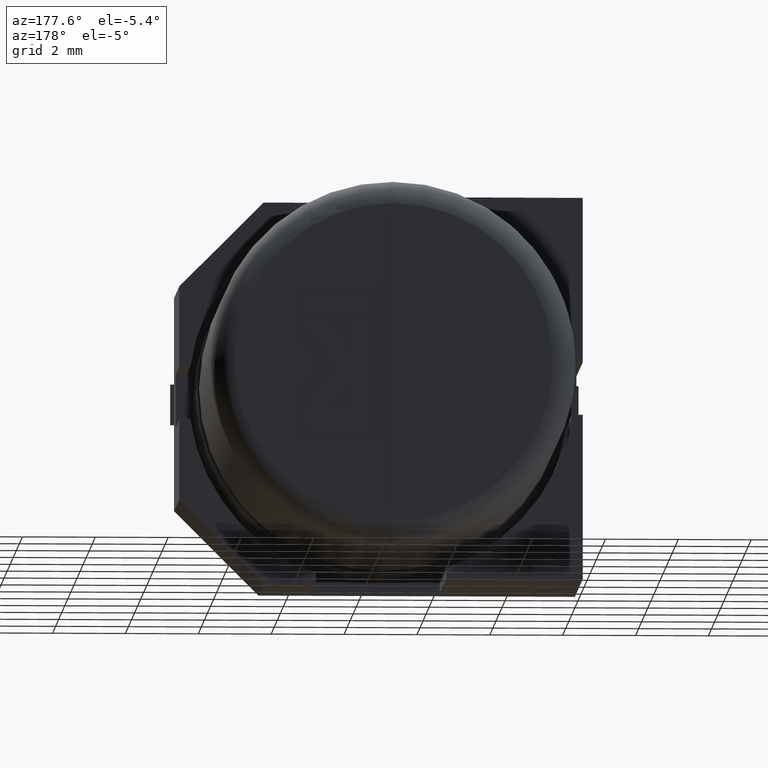
[diagram: clean part render]
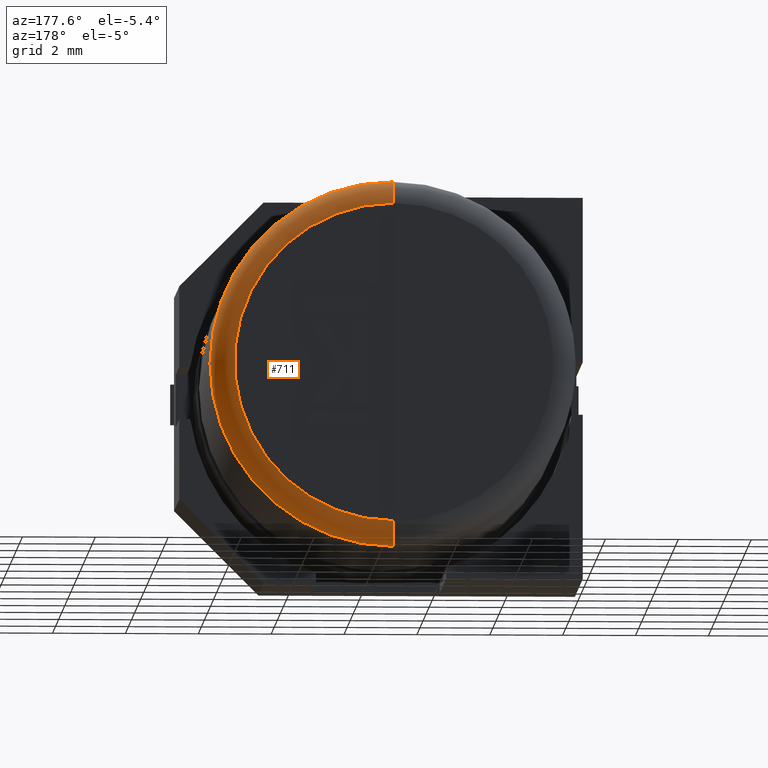
[diagram: same view with one face highlighted and labeled with its STEP entity id]
A machine part, auxiliary view. The second image highlights one B-rep face of the part: STEP entity #711.
In plain terms, the highlighted toroidal blend (fillet) surface has major radius 4.3735 mm and minor (blend) radius 0.645 mm.
Its self-contained STEP definition (entity closure, byte-faithful):
#14 = CIRCLE ( 'NONE', #376, 5.018475000000000500 ) ;
#36 = ORIENTED_EDGE ( 'NONE', *, *, #507, .F. ) ;
#92 = DIRECTION ( 'NONE',  ( 1.000000000000000000, -0.0000000000000000000, 1.224646799147353200E-016 ) ) ;
#122 = VERTEX_POINT ( 'NONE', #3306 ) ;
#147 = VERTEX_POINT ( 'NONE', #2519 ) ;
#257 = AXIS2_PLACEMENT_3D ( 'NONE', #2845, #491, #2861 ) ;
#333 = CARTESIAN_POINT ( 'NONE',  ( 5.500000000000000900, 12.05500000000000300, -0.2315249999999989300 ) ) ;
#368 = DIRECTION ( 'NONE',  ( 0.0000000000000000000, 0.0000000000000000000, 1.000000000000000000 ) ) ;
#376 = AXIS2_PLACEMENT_3D ( 'NONE', #1438, #3049, #3272 ) ;
#390 = CARTESIAN_POINT ( 'NONE',  ( 5.500000000000000000, 12.70000000000000300, -5.249999999999999100 ) ) ;
#425 = AXIS2_PLACEMENT_3D ( 'NONE', #1910, #92, #1964 ) ;
#462 = DIRECTION ( 'NONE',  ( 0.0000000000000000000, 0.0000000000000000000, 1.000000000000000000 ) ) ;
#491 = DIRECTION ( 'NONE',  ( -1.000000000000000000, 0.0000000000000000000, 0.0000000000000000000 ) ) ;
#507 = EDGE_CURVE ( 'NONE', #1386, #2776, #14, .T. ) ;
#664 = AXIS2_PLACEMENT_3D ( 'NONE', #743, #2061, #462 ) ;
#711 = ADVANCED_FACE ( 'NONE', ( #843 ), #1551, .T. ) ;
#743 = CARTESIAN_POINT ( 'NONE',  ( 5.500000000000000000, 12.05500000000000300, -5.249999999999999100 ) ) ;
#843 = FACE_OUTER_BOUND ( 'NONE', #2065, .T. ) ;
#890 = ORIENTED_EDGE ( 'NONE', *, *, #3193, .F. ) ;
#930 = ORIENTED_EDGE ( 'NONE', *, *, #1749, .F. ) ;
#983 = EDGE_CURVE ( 'NONE', #1386, #122, #2969, .T. ) ;
#1017 = CIRCLE ( 'NONE', #257, 0.6450000000000000200 ) ;
#1380 = CARTESIAN_POINT ( 'NONE',  ( 5.500000000000000000, 12.05500000000000300, -10.26847499999999900 ) ) ;
#1386 = VERTEX_POINT ( 'NONE', #1380 ) ;
#1438 = CARTESIAN_POINT ( 'NONE',  ( 5.500000000000000000, 12.05500000000000300, -5.249999999999999100 ) ) ;
#1551 = TOROIDAL_SURFACE ( 'NONE', #664, 4.373475000000000900, 0.6450000000000000200 ) ;
#1749 = EDGE_CURVE ( 'NONE', #2776, #147, #1017, .T. ) ;
#1910 = CARTESIAN_POINT ( 'NONE',  ( 5.500000000000000900, 12.05500000000000300, -9.623474999999999100 ) ) ;
#1964 = DIRECTION ( 'NONE',  ( 0.0000000000000000000, 0.0000000000000000000, -1.000000000000000000 ) ) ;
#2061 = DIRECTION ( 'NONE',  ( 0.0000000000000000000, 1.000000000000000000, 0.0000000000000000000 ) ) ;
#2065 = EDGE_LOOP ( 'NONE', ( #36, #2544, #890, #930 ) ) ;
#2519 = CARTESIAN_POINT ( 'NONE',  ( 5.500000000000000000, 12.70000000000000300, -0.8765249999999986700 ) ) ;
#2544 = ORIENTED_EDGE ( 'NONE', *, *, #983, .T. ) ;
#2757 = DIRECTION ( 'NONE',  ( 0.0000000000000000000, 1.000000000000000000, 0.0000000000000000000 ) ) ;
#2776 = VERTEX_POINT ( 'NONE', #333 ) ;
#2845 = CARTESIAN_POINT ( 'NONE',  ( 5.500000000000000000, 12.05500000000000300, -0.8765249999999986700 ) ) ;
#2861 = DIRECTION ( 'NONE',  ( 0.0000000000000000000, 0.0000000000000000000, 1.000000000000000000 ) ) ;
#2962 = CIRCLE ( 'NONE', #3194, 4.373475000000000900 ) ;
#2969 = CIRCLE ( 'NONE', #425, 0.6449999999999998000 ) ;
#3049 = DIRECTION ( 'NONE',  ( -0.0000000000000000000, -1.000000000000000000, -0.0000000000000000000 ) ) ;
#3193 = EDGE_CURVE ( 'NONE', #147, #122, #2962, .T. ) ;
#3194 = AXIS2_PLACEMENT_3D ( 'NONE', #390, #2757, #368 ) ;
#3272 = DIRECTION ( 'NONE',  ( 0.0000000000000000000, 0.0000000000000000000, 1.000000000000000000 ) ) ;
#3306 = CARTESIAN_POINT ( 'NONE',  ( 5.500000000000000900, 12.70000000000000300, -9.623474999999999100 ) ) ;